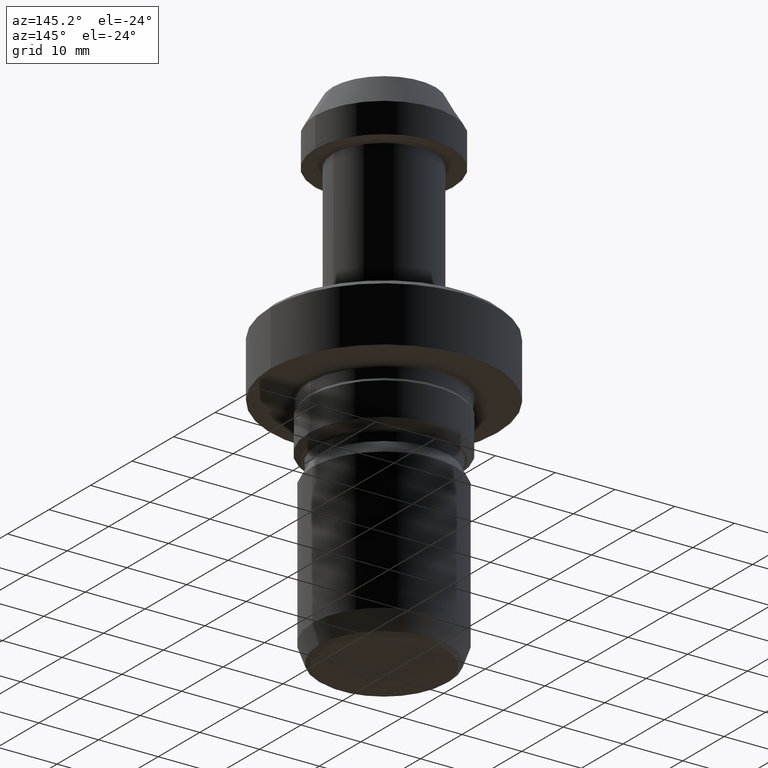
[diagram: clean part render]
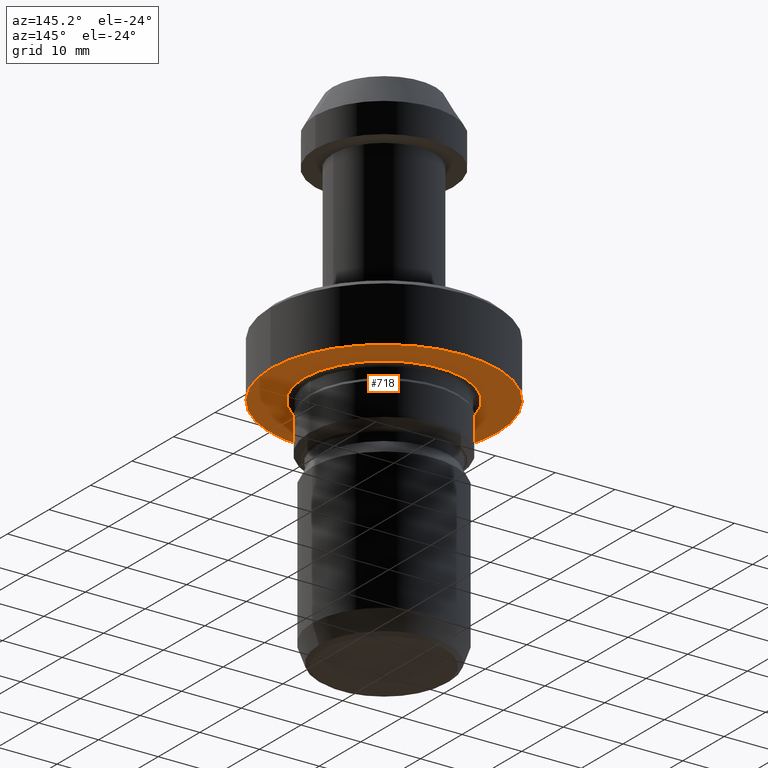
[diagram: same view with one face highlighted and labeled with its STEP entity id]
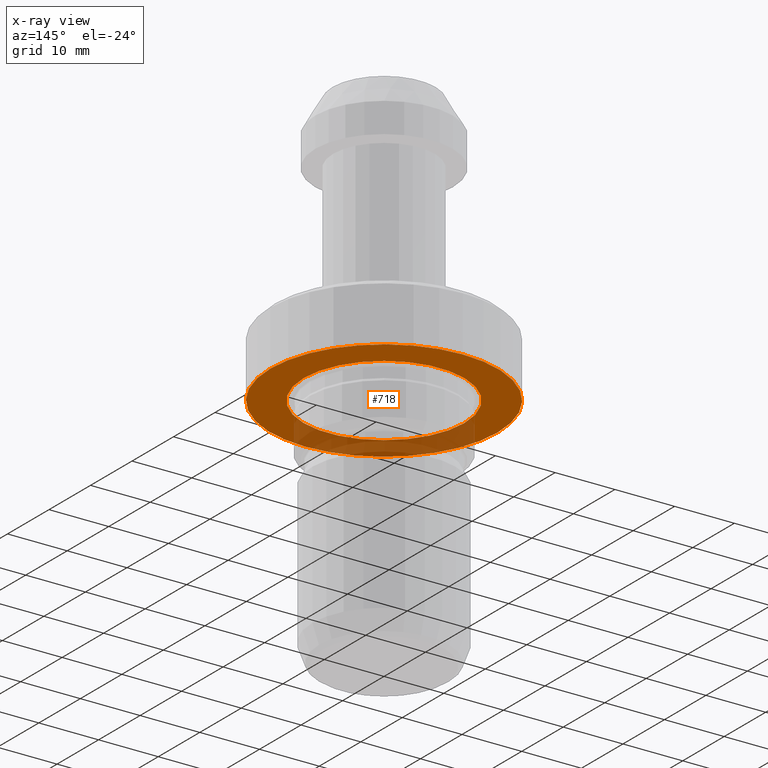
[diagram: x-ray of the same camera — body ghosted, the highlighted face saturated]
A machine part, auxiliary view. The second image highlights one B-rep face of the part: STEP entity #718.
The next image is the same camera in x-ray: the body ghosted, the highlighted face saturated — about 28% of this face is hidden behind the body in this view.
In plain terms, the highlighted planar face has unit normal (0, -0, 1).
Its self-contained STEP definition (entity closure, byte-faithful):
#78 = EDGE_CURVE ( 'NONE', #971, #1059, #527, .T. ) ;
#95 = EDGE_CURVE ( 'NONE', #398, #1021, #742, .T. ) ;
#186 = AXIS2_PLACEMENT_3D ( 'NONE', #748, #223, #840 ) ;
#210 = CARTESIAN_POINT ( 'NONE',  ( 0.0000000000000000000, 19.00000000000000000, -45.00000000000000000 ) ) ;
#223 = DIRECTION ( 'NONE',  ( -0.0000000000000000000, -0.0000000000000000000, 1.000000000000000000 ) ) ;
#238 = DIRECTION ( 'NONE',  ( -0.0000000000000000000, -0.0000000000000000000, 1.000000000000000000 ) ) ;
#261 = DIRECTION ( 'NONE',  ( 0.0000000000000000000, -0.0000000000000000000, 1.000000000000000000 ) ) ;
#323 = AXIS2_PLACEMENT_3D ( 'NONE', #210, #261, #894 ) ;
#389 = DIRECTION ( 'NONE',  ( -0.0000000000000000000, -0.0000000000000000000, 1.000000000000000000 ) ) ;
#398 = VERTEX_POINT ( 'NONE', #720 ) ;
#440 = ORIENTED_EDGE ( 'NONE', *, *, #816, .F. ) ;
#450 = AXIS2_PLACEMENT_3D ( 'NONE', #765, #238, #856 ) ;
#469 = AXIS2_PLACEMENT_3D ( 'NONE', #916, #389, #1011 ) ;
#498 = CARTESIAN_POINT ( 'NONE',  ( 0.0000000000000000000, 0.0000000000000000000, -45.00000000000000000 ) ) ;
#527 = CIRCLE ( 'NONE', #450, 13.42948770699334900 ) ;
#583 = DIRECTION ( 'NONE',  ( 1.000000000000000000, 0.0000000000000000000, 0.0000000000000000000 ) ) ;
#588 = CARTESIAN_POINT ( 'NONE',  ( 13.42948770699334900, 1.644637913455813300E-015, -44.99999999999999300 ) ) ;
#631 = FACE_BOUND ( 'NONE', #804, .T. ) ;
#663 = EDGE_LOOP ( 'NONE', ( #1071, #440 ) ) ;
#690 = CIRCLE ( 'NONE', #469, 13.42948770699334900 ) ;
#695 = EDGE_CURVE ( 'NONE', #1059, #971, #690, .T. ) ;
#718 = ADVANCED_FACE ( 'NONE', ( #879, #631 ), #921, .F. ) ;
#720 = CARTESIAN_POINT ( 'NONE',  ( 19.00000000000000000, 0.0000000000000000000, -45.00000000000000000 ) ) ;
#726 = CIRCLE ( 'NONE', #186, 19.00000000000000000 ) ;
#731 = CARTESIAN_POINT ( 'NONE',  ( -13.42948770699334900, 0.0000000000000000000, -44.99999999999999300 ) ) ;
#742 = CIRCLE ( 'NONE', #1117, 19.00000000000000000 ) ;
#748 = CARTESIAN_POINT ( 'NONE',  ( 0.0000000000000000000, 0.0000000000000000000, -45.00000000000000000 ) ) ;
#765 = CARTESIAN_POINT ( 'NONE',  ( 0.0000000000000000000, 0.0000000000000000000, -44.99999999999999300 ) ) ;
#804 = EDGE_LOOP ( 'NONE', ( #942, #1066 ) ) ;
#816 = EDGE_CURVE ( 'NONE', #1021, #398, #726, .T. ) ;
#819 = CARTESIAN_POINT ( 'NONE',  ( -19.00000000000000000, 2.326828918379971000E-015, -45.00000000000000000 ) ) ;
#840 = DIRECTION ( 'NONE',  ( 1.000000000000000000, 0.0000000000000000000, 0.0000000000000000000 ) ) ;
#856 = DIRECTION ( 'NONE',  ( 1.000000000000000000, 0.0000000000000000000, 0.0000000000000000000 ) ) ;
#879 = FACE_OUTER_BOUND ( 'NONE', #663, .T. ) ;
#894 = DIRECTION ( 'NONE',  ( 1.000000000000000000, 0.0000000000000000000, 0.0000000000000000000 ) ) ;
#916 = CARTESIAN_POINT ( 'NONE',  ( 0.0000000000000000000, 0.0000000000000000000, -44.99999999999999300 ) ) ;
#921 = PLANE ( 'NONE',  #323 ) ;
#942 = ORIENTED_EDGE ( 'NONE', *, *, #695, .T. ) ;
#971 = VERTEX_POINT ( 'NONE', #588 ) ;
#1011 = DIRECTION ( 'NONE',  ( 1.000000000000000000, 0.0000000000000000000, 0.0000000000000000000 ) ) ;
#1021 = VERTEX_POINT ( 'NONE', #819 ) ;
#1059 = VERTEX_POINT ( 'NONE', #731 ) ;
#1066 = ORIENTED_EDGE ( 'NONE', *, *, #78, .T. ) ;
#1071 = ORIENTED_EDGE ( 'NONE', *, *, #95, .F. ) ;
#1117 = AXIS2_PLACEMENT_3D ( 'NONE', #498, #1118, #583 ) ;
#1118 = DIRECTION ( 'NONE',  ( -0.0000000000000000000, -0.0000000000000000000, 1.000000000000000000 ) ) ;